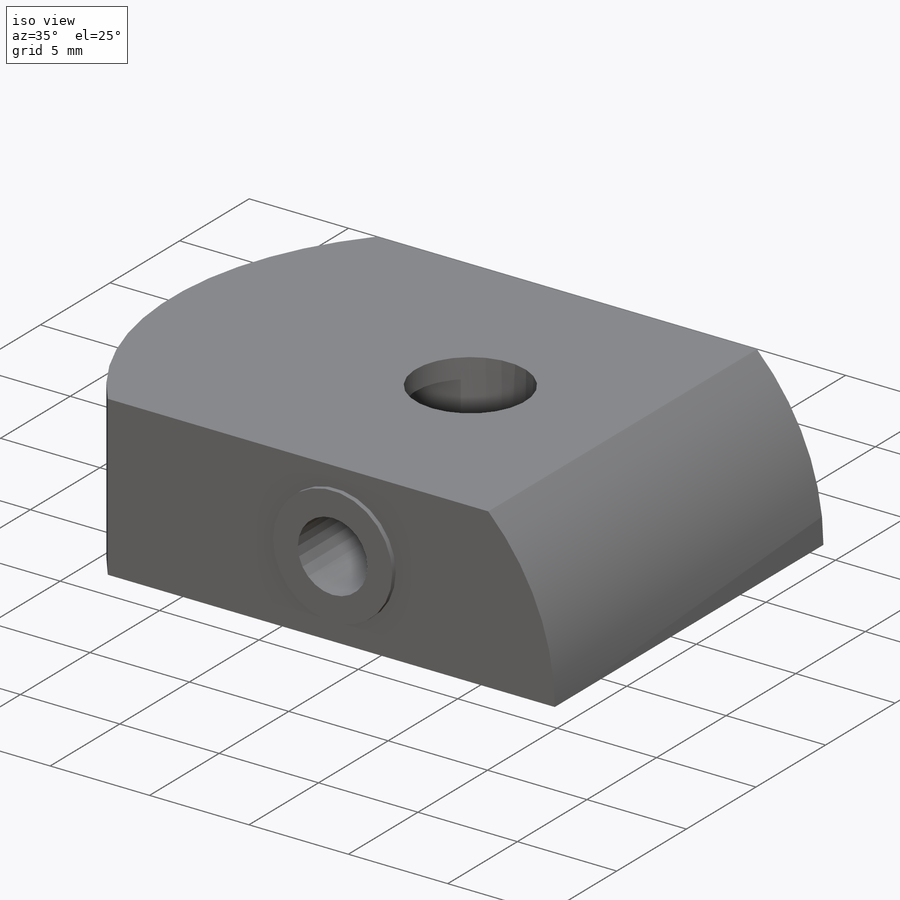
[diagram: iso view]
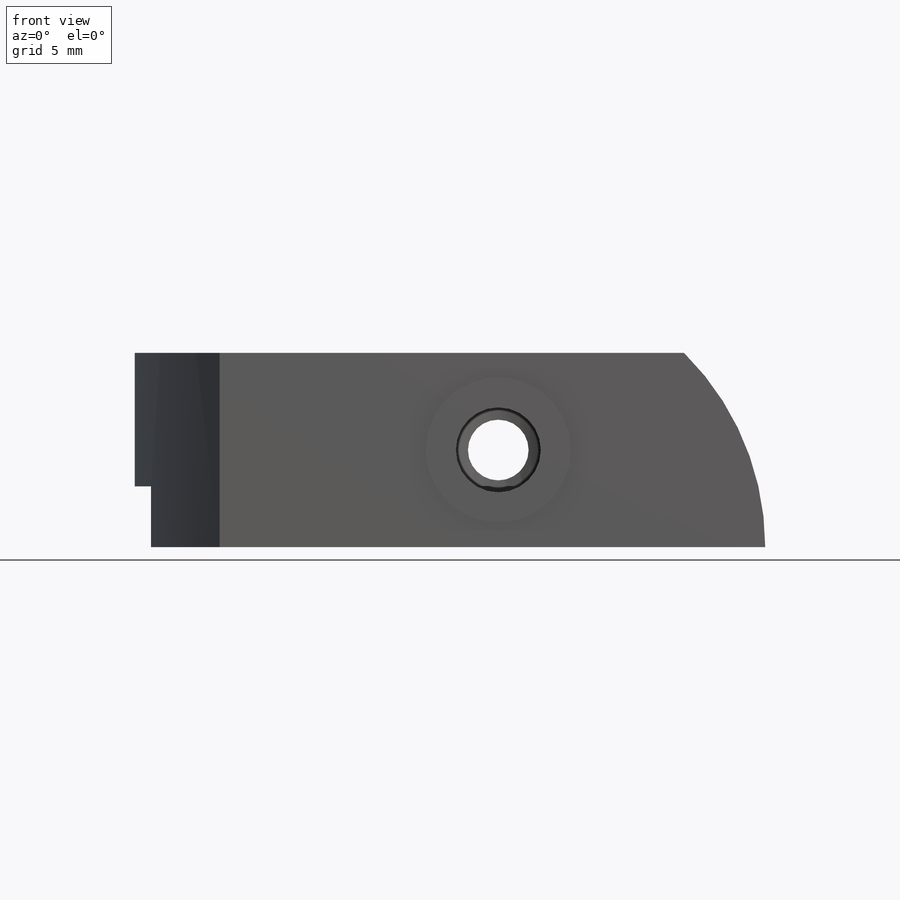
[diagram: front view]
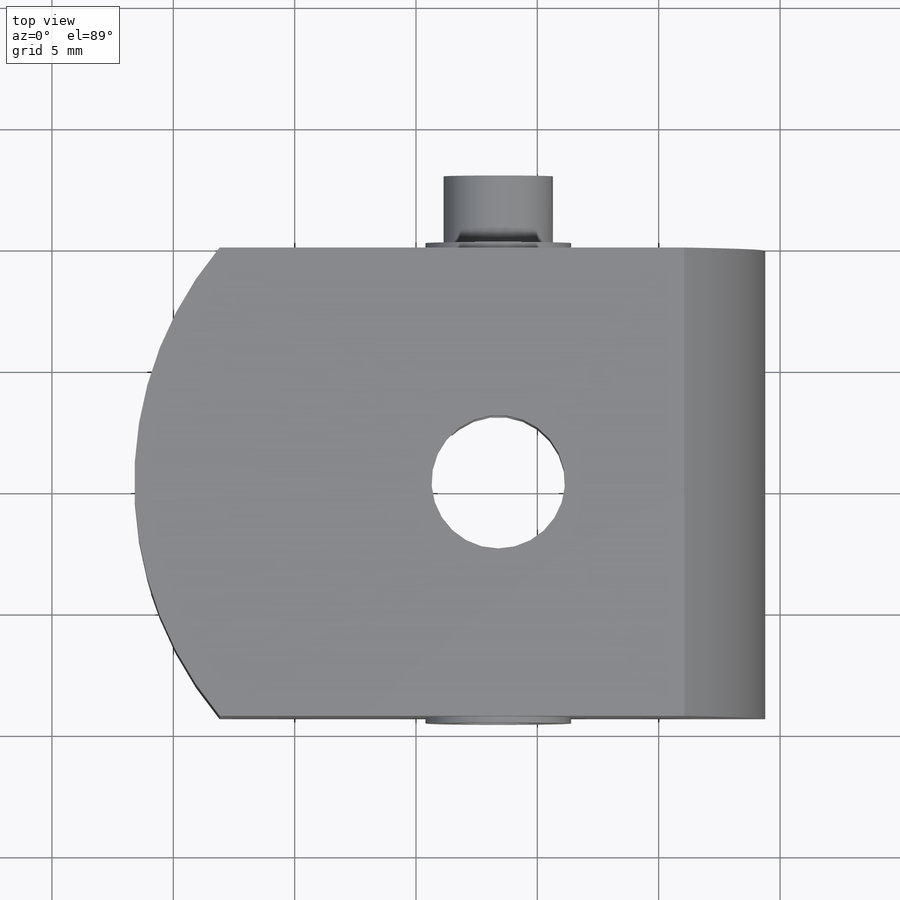
[diagram: top view]
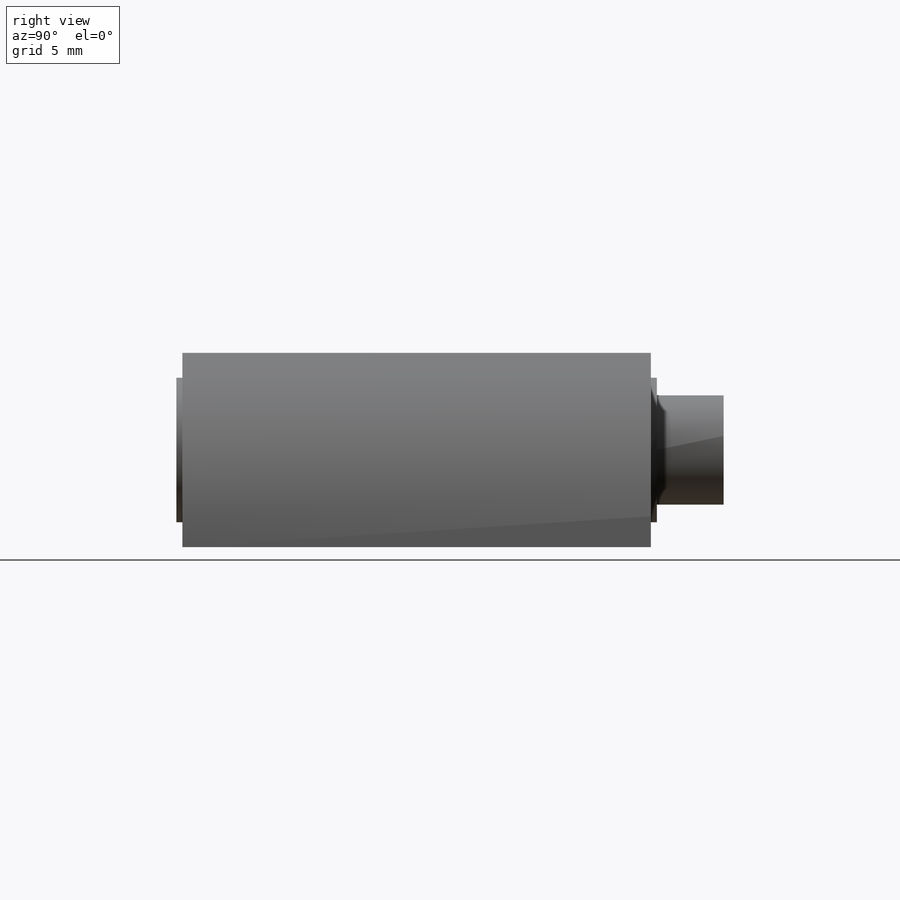
[diagram: right view]
SOLIDWORKS PART (.sldprt)
format: sldprt  version: not decoded by parser v0  size: 301,568 bytes
history: native  units: mm
features: sketch x11, cut_extrude x7, extrude x4, material x1 (+14 scaffold rows collapsed; 1 parser-record rows omitted)
feature tree (38):
  scaffold x14  (default folders/planes/origin — collapsed)
  material  "Material <not specified>"
  sketch  "Sketch1"  dims[D1=11.0mm]
  extrude  "Boss-Extrude1"  Depth=19.3mm
  parser-record x1  (decoder bookkeeping rows leaked as tree rows — omitted from the tree; the rows remain in map.json)
  sketch  "Sketch5"  dims[D1=7.5mm]
  cut_extrude  "Pot Insert"  Depth=2.5mm
  sketch  "Sketch6"  dims[D1=2.85mm]
  cut_extrude  "Pot Hole"  Depth=4mm
  sketch  "Sketch8"  dims[D1=~3.414008mm]
  extrude  "Boss-Extrude2"  Depth=3mm
  sketch  "Sketch18"  dims[D1=2.75mm]
  extrude  "Boss-Extrude4"  Depth=0.25mm
  sketch  "Sketch17"  dims[D1=2.75mm]
  extrude  "Boss-Extrude3"  Depth=0.25mm
  sketch  "Sketch7"  dims[D1=~3.863244mm]
  cut_extrude  "Abduction Curve"  Depth=4mm
  sketch  "Sketch13"  dims[D1=2.0mm]
  cut_extrude  "Abduction Cable Hole"  Depth=9mm
  sketch  "Sketch14"  dims[D1=~35.464277mm]
  cut_extrude  "Flex-Extend Curve"  [1 undecoded]
  sketch  "Sketch15"  dims[D1=4.0mm]
  cut_extrude  "Cut-Extrude1"  Depth=4.5mm
  sketch  "Sketch16"  dims[D1=1.5mm]
  cut_extrude  "Cut-Extrude2"  [1 undecoded]
decode coverage: 20 of 22 modeling features carry decoded parameters
note: ~ marks probable driven/reference dimensions
note: 2 parameter values undecoded
note: suppression state not decoded; provenance and decode notes live in map.json
